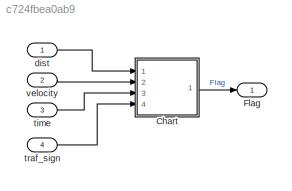
MODEL slx_c724fbea0ab9
KIND model
CONFIG AbsTol = auto
CONFIG EnableMultiTasking = off
CONFIG FixedStep = 0.01
CONFIG MaxStep = auto
CONFIG MinStep = auto
CONFIG PostLoadFcn = , if any(exist('dsrtsu_mdlpostloadfcn', 'file') == [2, 3, 6]), try dsrtsu_mdlpostloadfcn('Execute', bdroot); catch fprintf('Error in PostLoadFcn (dsrtsu_mdlpostloadfcn) for model "%s":\n %s\n', bdroot, lasterr); end, end, \n
CONFIG RelTol = 1e-3
CONFIG SampleTimeConstraint = Unconstrained
CONFIG Solver = ode1
CONFIG SolverName = ode1
CONFIG StartTime = 0.0
CONFIG StopTime = 0
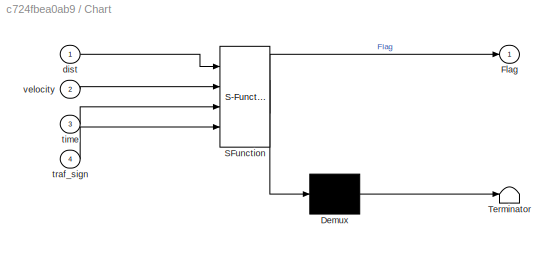
BLOCK [SubSystem] Chart
  ErrorFcn = Stateflow.Translate.translate
  PermitHierarchicalResolution = ExplicitOnly
  Ports = [4, 1]
  RequestExecContextInheritance = off
  SFBlockType = Chart
  TreatAsAtomicUnit = on
BLOCK [Demux] Chart/ Demux 
  Outputs = 1
  Ports = [1, 1]
BLOCK [S-Function] Chart/ SFunction 
  EnableBusSupport = on
  FunctionName = sf_sfun
  PortCounts = [4 2]
  Ports = [4, 2]
  SFcnIsStateOwnerBlock = off
  SFunctionDeploymentMode = off
  Tag = Stateflow S-Function test_on_intes_cross2018_TestCase 1
BLOCK [Terminator] Chart/ Terminator 
BLOCK [Outport] Chart/Flag
  IconDisplay = Port number
BLOCK [Inport] Chart/dist
  IconDisplay = Port number
BLOCK [Inport] Chart/time
  IconDisplay = Port number
  Port = 3
BLOCK [Inport] Chart/traf_sign
  IconDisplay = Port number
  Port = 4
BLOCK [Inport] Chart/velocity
  IconDisplay = Port number
  Port = 2
BLOCK [Outport] Flag
  IconDisplay = Port number
BLOCK [Inport] dist
  IconDisplay = Port number
BLOCK [Inport] time
  IconDisplay = Port number
  Port = 3
BLOCK [Inport] traf_sign
  IconDisplay = Port number
  Port = 4
BLOCK [Inport] velocity
  IconDisplay = Port number
  Port = 2
LINE Chart:1 -> Flag:1
LINE dist:1 -> Chart:1
LINE time:1 -> Chart:3
LINE traf_sign:1 -> Chart:4
LINE velocity:1 -> Chart:2
CHART Chart states=3 transitions=4
  STATE_LABEL 'Off\nen:\nFlag=0;'
  STATE_LABEL 'init\nen:\nFlag=0;'
  STATE_LABEL 'On\ndu:\nFlag=1;'
